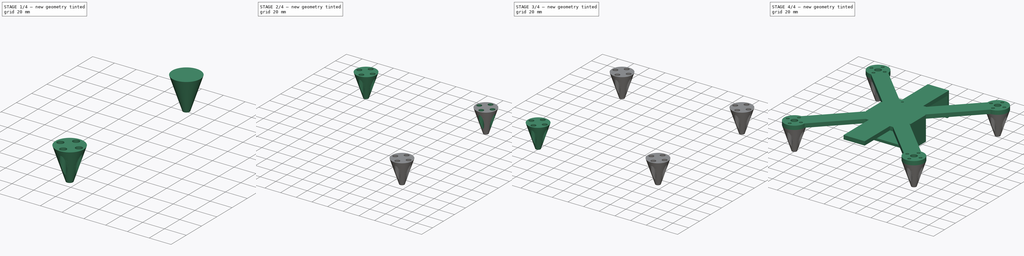
[diagram: build sequence overview — one tinted view per stage of 4, left to right]
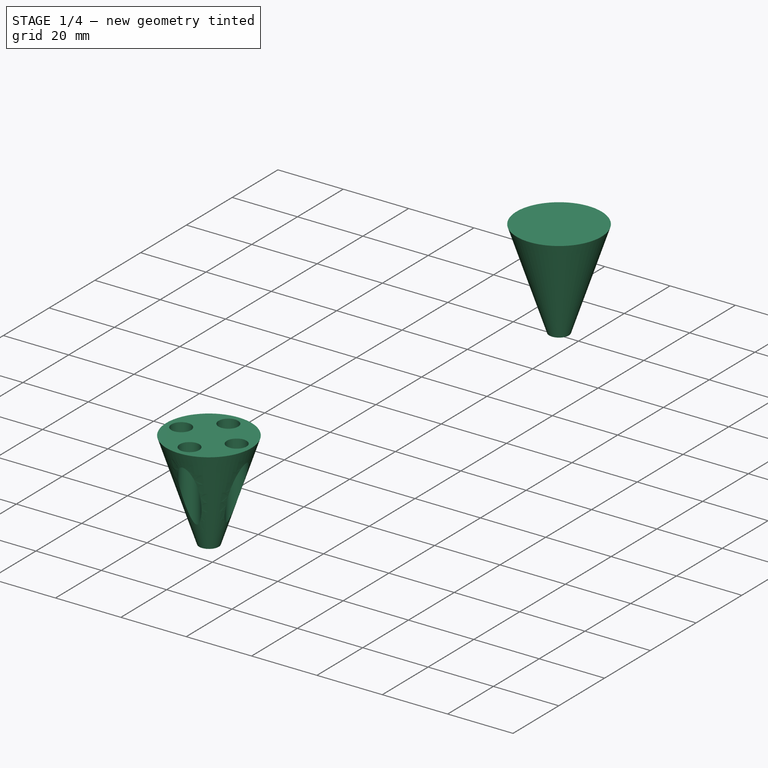
[diagram: stage 1 of 4 — iso view after this stage's code; geometry added in this stage tinted green]
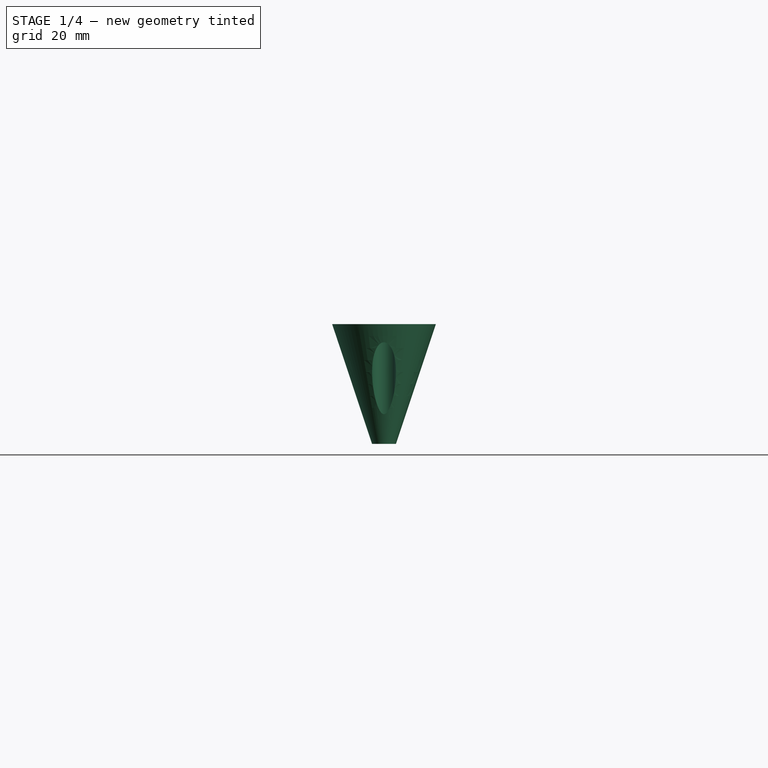
[diagram: stage 1 of 4 — front view after this stage's code; geometry added in this stage tinted green]
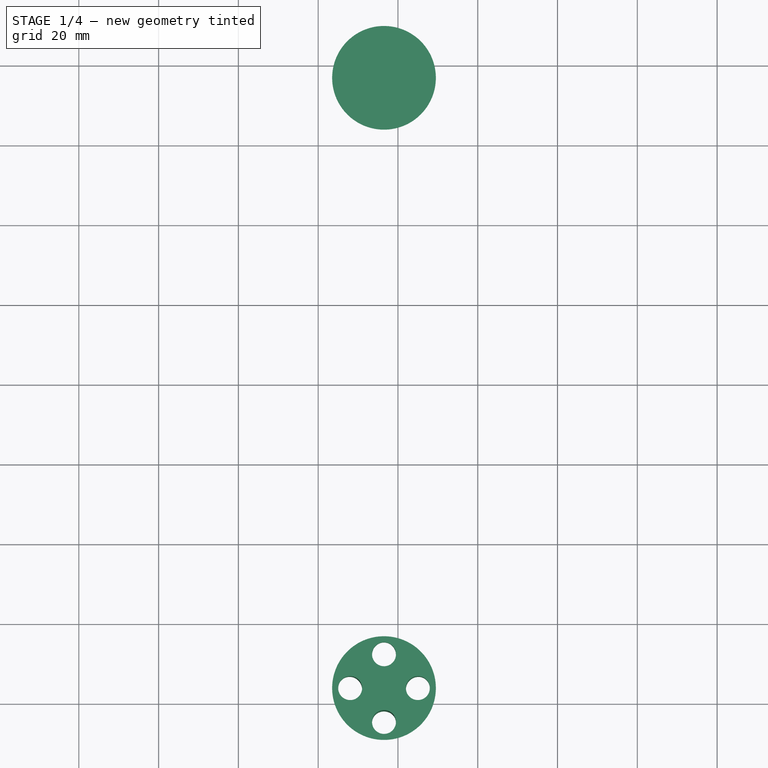
[diagram: stage 1 of 4 — top view after this stage's code; geometry added in this stage tinted green]
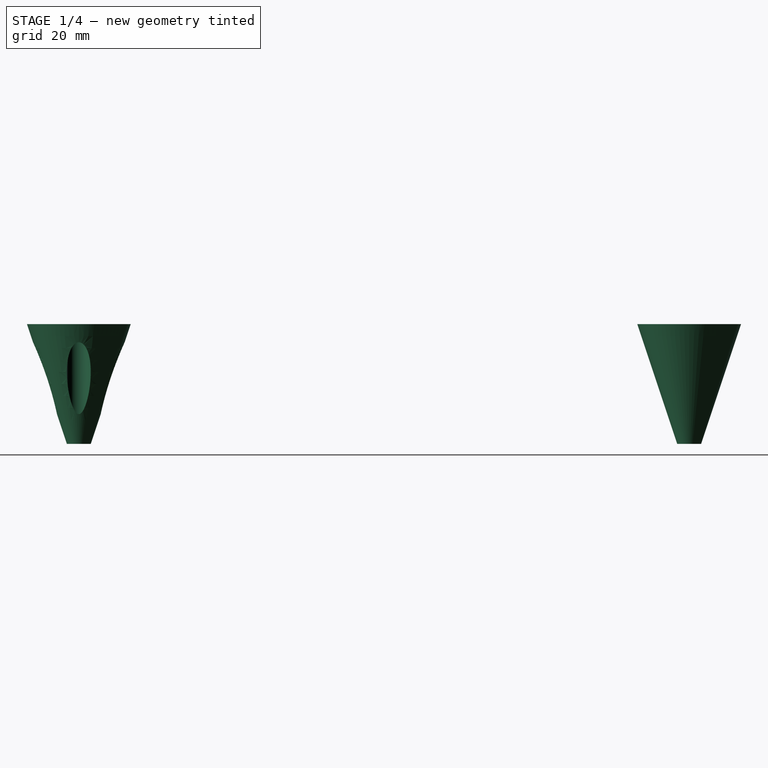
[diagram: stage 1 of 4 — right view after this stage's code; geometry added in this stage tinted green]
FCSTD DOCUMENT  (FreeCAD 0.16RUnknown)
Label: drone
License: All rights reserved
LicenseURL: http://en.wikipedia.org/wiki/All_rights_reserved
objects: Sketcher::SketchObject×7, Part::Cone×4, PartDesign::Pocket×4, PartDesign::Pad×3
note: 25 computed .brp shape members not serialized (recipe doc carries the construction recipe); baked Part::Feature solids carry a one-line shape summary decoded from their .brp

FEATURE [Part::Cone] Cone
  Angle = 360
  Height = 30
  Placement = pos=(76.5,-76.5,-30) rot=(0,0,1;0rad)
  Radius1 = 3
  Radius2 = 13
FEATURE [Part::Cone] Cone001
  Angle = 360
  Height = 30
  Placement = pos=(76.5,76.5,-30) rot=(0,0,1;0rad)
  Radius1 = 3
  Radius2 = 13
FEATURE [PartDesign::Pocket] Pocket003
  Length = 5
  Placement = pos=(76.5,-76.5,-30) rot=(0,0,1;0rad)
  Sketch = -> Sketch008
  Type = 1
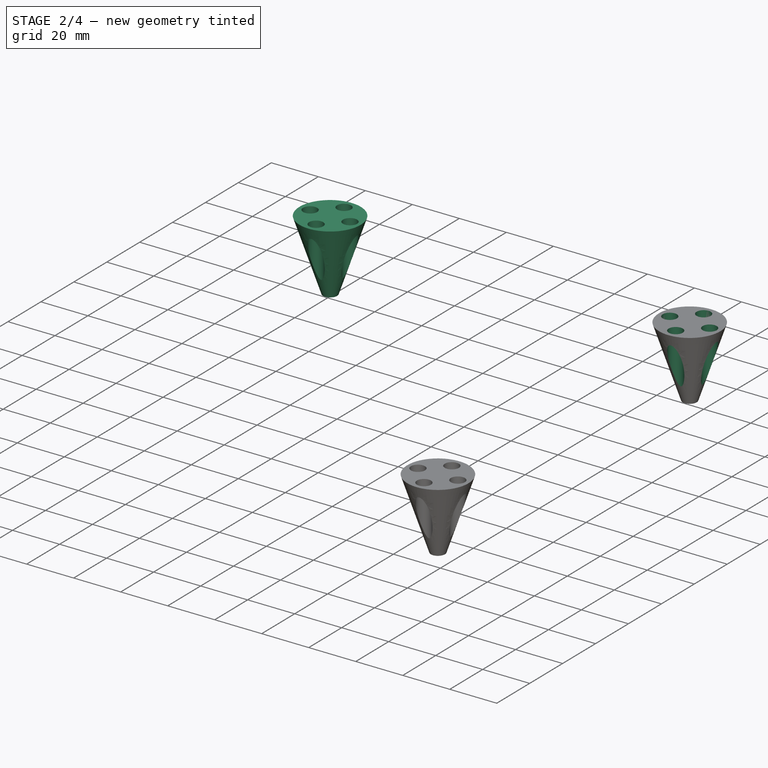
[diagram: stage 2 of 4 — iso view after this stage's code; geometry added in this stage tinted green]
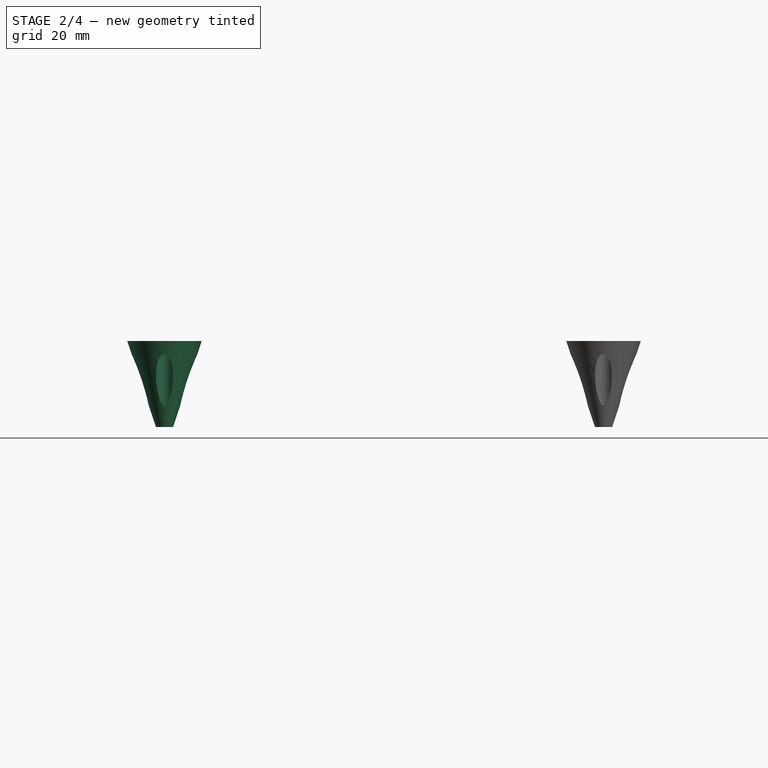
[diagram: stage 2 of 4 — front view after this stage's code; geometry added in this stage tinted green]
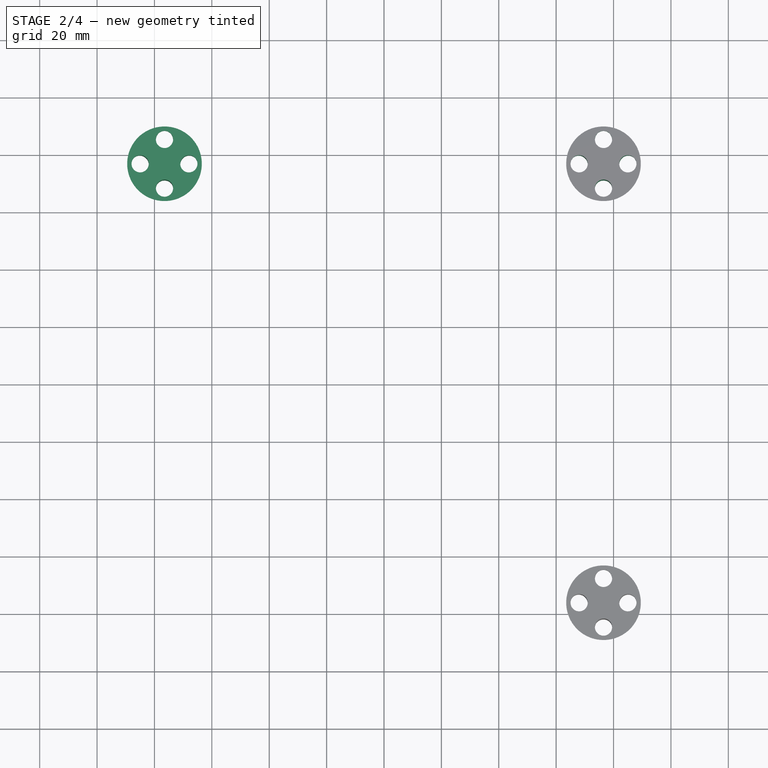
[diagram: stage 2 of 4 — top view after this stage's code; geometry added in this stage tinted green]
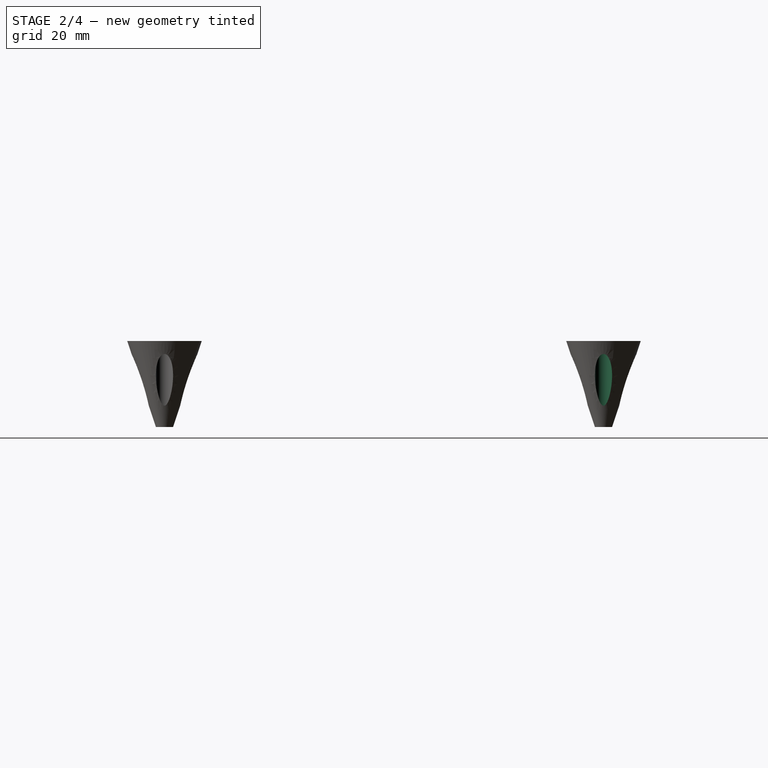
[diagram: stage 2 of 4 — right view after this stage's code; geometry added in this stage tinted green]
FEATURE [Part::Cone] Cone002
  Angle = 360
  Height = 30
  Placement = pos=(-76.5,76.5,-30) rot=(0,0,1;0rad)
  Radius1 = 3
  Radius2 = 13
FEATURE [Sketcher::SketchObject] Sketch006
  Placement = pos=(-76.5,76.5,0) rot=(0,0,1;0rad)
  Support = -> Cone002 [Face2]
  sketch-geometry (9):
    g0: LineSegment [constr] StartX=153.235 StartY=0 StartZ=0 EndX=0 EndY=0 EndZ=0
    g1: LineSegment [constr] StartX=0 StartY=8.48528 StartZ=0 EndX=8.48528 EndY=0 EndZ=0
    g2: LineSegment [constr] StartX=8.48528 StartY=0 StartZ=0 EndX=0 EndY=-8.48528 EndZ=0
    g3: LineSegment [constr] StartX=0 StartY=-8.48528 StartZ=0 EndX=-8.48528 EndY=0 EndZ=0
    g4: LineSegment [constr] StartX=-8.48528 StartY=0 StartZ=0 EndX=0 EndY=8.48528 EndZ=0
    g5: Circle CenterX=0 CenterY=8.48528 CenterZ=0 NormalX=0 NormalY=0 NormalZ=1 Radius=3
    g6: Circle CenterX=8.48528 CenterY=0 CenterZ=0 NormalX=0 NormalY=0 NormalZ=1 Radius=3
    g7: Circle CenterX=0 CenterY=-8.48528 CenterZ=0 NormalX=0 NormalY=0 NormalZ=1 Radius=3
    g8: Circle CenterX=-8.48528 CenterY=0 CenterZ=0 NormalX=0 NormalY=0 NormalZ=1 Radius=3
  constraints (21):
    c: Horizontal(g0)
    c: Coincident(g1,g2)
    c: Coincident(g2,g3)
    c: Coincident(g3,g4)
    c: Coincident(g4,g1)
    c: Equal(g2,g1)
    c: Equal(g1,g3)
    c: Equal(g3,g4)
    c: Angle(g1,g2) = 1.5708
    c: Coincident(g5,g1)
    c: Coincident(g6,g1)
    c: Coincident(g7,g2)
    c: Coincident(g8,g3)
    c: Equal(g8,g5)
    c: Equal(g8,g7)
    c: Symmetric(g1,g3,g0)
    c: PointOnObject(g1,g0)
    c: Coincident(g0,g-1)
    c: Distance(g1) = 12
    c: Radius(g6) = 3
    c: Equal(g6,g8)
FEATURE [Sketcher::SketchObject] Sketch007
  Placement = pos=(76.5,76.5,0) rot=(0,0,1;0rad)
  Support = -> Cone001 [Face2]
  sketch-geometry (9):
    g0: LineSegment [constr] StartX=153.235 StartY=0 StartZ=0 EndX=0 EndY=0 EndZ=0
    g1: LineSegment [constr] StartX=0 StartY=8.48528 StartZ=0 EndX=8.48528 EndY=0 EndZ=0
    g2: LineSegment [constr] StartX=8.48528 StartY=0 StartZ=0 EndX=0 EndY=-8.48528 EndZ=0
    g3: LineSegment [constr] StartX=0 StartY=-8.48528 StartZ=0 EndX=-8.48528 EndY=0 EndZ=0
    g4: LineSegment [constr] StartX=-8.48528 StartY=0 StartZ=0 EndX=0 EndY=8.48528 EndZ=0
    g5: Circle CenterX=0 CenterY=8.48528 CenterZ=0 NormalX=0 NormalY=0 NormalZ=1 Radius=3
    g6: Circle CenterX=8.48528 CenterY=0 CenterZ=0 NormalX=0 NormalY=0 NormalZ=1 Radius=3
    g7: Circle CenterX=0 CenterY=-8.48528 CenterZ=0 NormalX=0 NormalY=0 NormalZ=1 Radius=3
    g8: Circle CenterX=-8.48528 CenterY=0 CenterZ=0 NormalX=0 NormalY=0 NormalZ=1 Radius=3
  constraints (21):
    c: Horizontal(g0)
    c: Coincident(g1,g2)
    c: Coincident(g2,g3)
    c: Coincident(g3,g4)
    c: Coincident(g4,g1)
    c: Equal(g2,g1)
    c: Equal(g1,g3)
    c: Equal(g3,g4)
    c: Angle(g1,g2) = 1.5708
    c: Coincident(g5,g1)
    c: Coincident(g6,g1)
    c: Coincident(g7,g2)
    c: Coincident(g8,g3)
    c: Equal(g8,g5)
    c: Equal(g8,g7)
    c: Symmetric(g1,g3,g0)
    c: PointOnObject(g1,g0)
    c: Coincident(g0,g-1)
    c: Distance(g1) = 12
    c: Radius(g6) = 3
    c: Equal(g6,g8)
FEATURE [Sketcher::SketchObject] Sketch008
  Placement = pos=(76.5,-76.5,0) rot=(0,0,1;0rad)
  Support = -> Cone [Face2]
  sketch-geometry (9):
    g0: LineSegment [constr] StartX=153.235 StartY=0 StartZ=0 EndX=0 EndY=0 EndZ=0
    g1: LineSegment [constr] StartX=0 StartY=8.48528 StartZ=0 EndX=8.48528 EndY=0 EndZ=0
    g2: LineSegment [constr] StartX=8.48528 StartY=0 StartZ=0 EndX=0 EndY=-8.48528 EndZ=0
    g3: LineSegment [constr] StartX=0 StartY=-8.48528 StartZ=0 EndX=-8.48528 EndY=0 EndZ=0
    g4: LineSegment [constr] StartX=-8.48528 StartY=0 StartZ=0 EndX=0 EndY=8.48528 EndZ=0
    g5: Circle CenterX=0 CenterY=8.48528 CenterZ=0 NormalX=0 NormalY=0 NormalZ=1 Radius=3
    g6: Circle CenterX=8.48528 CenterY=0 CenterZ=0 NormalX=0 NormalY=0 NormalZ=1 Radius=3
    g7: Circle CenterX=0 CenterY=-8.48528 CenterZ=0 NormalX=0 NormalY=0 NormalZ=1 Radius=3
    g8: Circle CenterX=-8.48528 CenterY=0 CenterZ=0 NormalX=0 NormalY=0 NormalZ=1 Radius=3
  constraints (21):
    c: Horizontal(g0)
    c: Coincident(g1,g2)
    c: Coincident(g2,g3)
    c: Coincident(g3,g4)
    c: Coincident(g4,g1)
    c: Equal(g2,g1)
    c: Equal(g1,g3)
    c: Equal(g3,g4)
    c: Angle(g1,g2) = 1.5708
    c: Coincident(g5,g1)
    c: Coincident(g6,g1)
    c: Coincident(g7,g2)
    c: Coincident(g8,g3)
    c: Equal(g8,g5)
    c: Equal(g8,g7)
    c: Symmetric(g1,g3,g0)
    c: PointOnObject(g1,g0)
    c: Coincident(g0,g-1)
    c: Distance(g1) = 12
    c: Radius(g6) = 3
    c: Equal(g6,g8)
FEATURE [PartDesign::Pocket] Pocket001
  Length = 5
  Placement = pos=(-76.5,76.5,-30) rot=(0,0,1;0rad)
  Sketch = -> Sketch006
  Type = 1
FEATURE [PartDesign::Pocket] Pocket002
  Length = 5
  Placement = pos=(76.5,76.5,-30) rot=(0,0,1;0rad)
  Sketch = -> Sketch007
  Type = 1
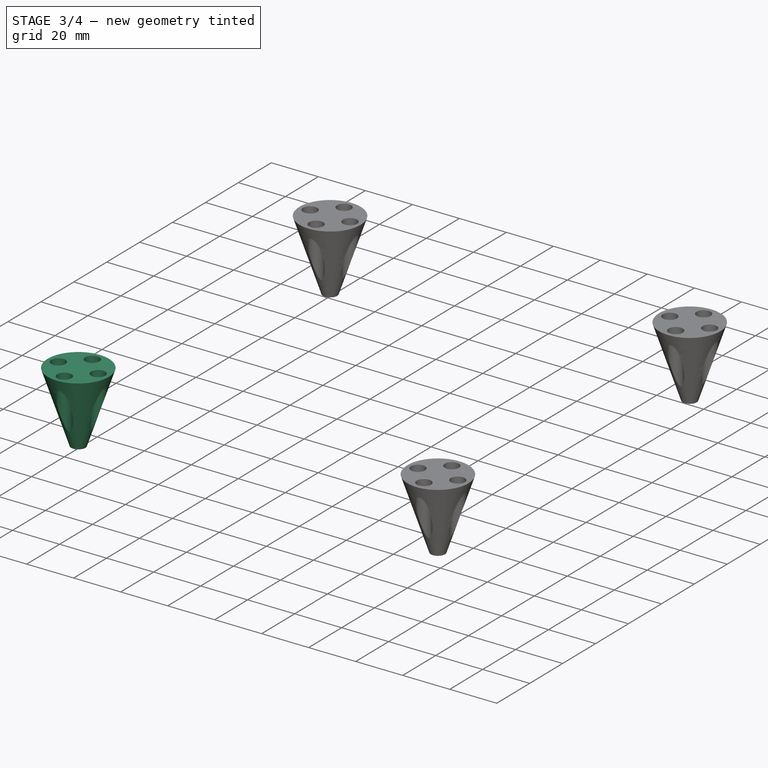
[diagram: stage 3 of 4 — iso view after this stage's code; geometry added in this stage tinted green]
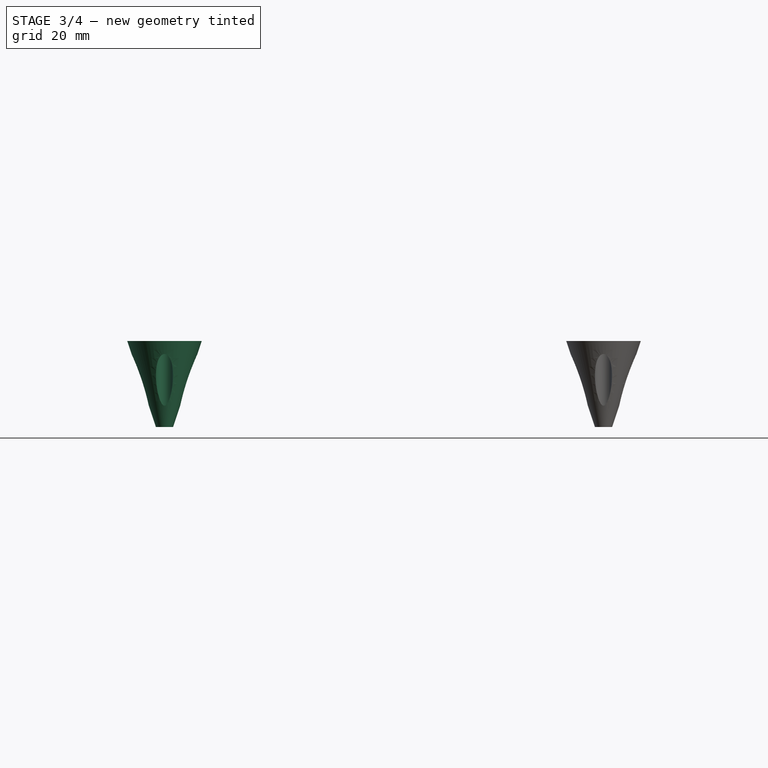
[diagram: stage 3 of 4 — front view after this stage's code; geometry added in this stage tinted green]
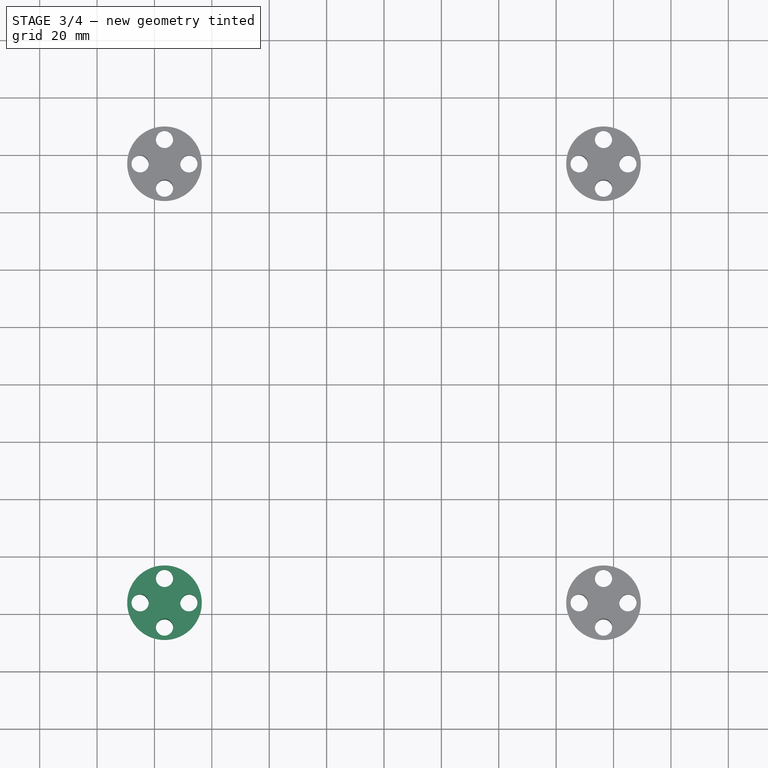
[diagram: stage 3 of 4 — top view after this stage's code; geometry added in this stage tinted green]
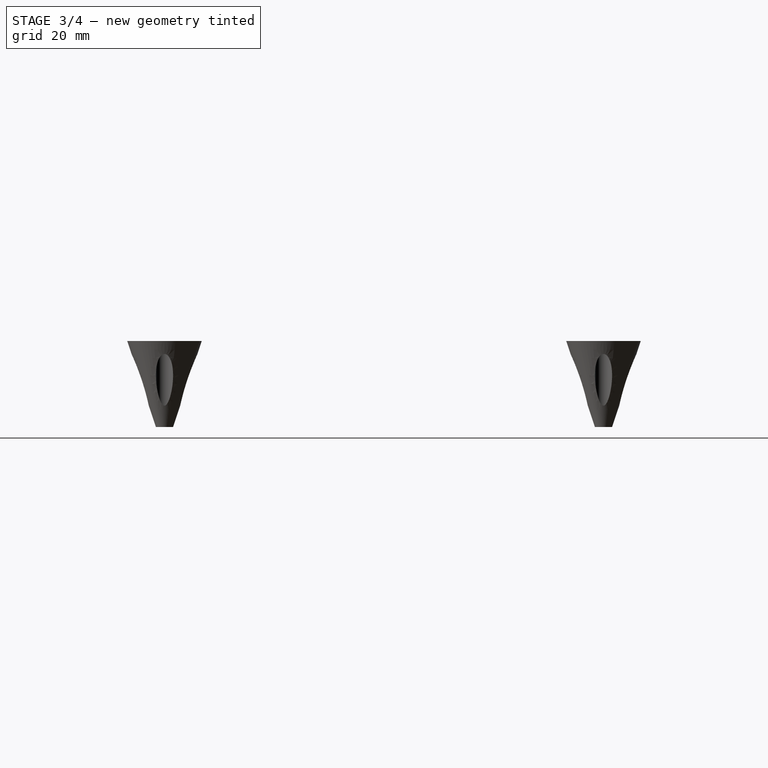
[diagram: stage 3 of 4 — right view after this stage's code; geometry added in this stage tinted green]
FEATURE [Part::Cone] Cone003
  Angle = 360
  Height = 30
  Placement = pos=(-76.5,-76.5,-30) rot=(0,0,1;0rad)
  Radius1 = 3
  Radius2 = 13
FEATURE [Sketcher::SketchObject] Sketch004
  Placement = pos=(-76.5,-76.5,0) rot=(0,0,1;0rad)
  Support = -> Cone003 [Face2]
  sketch-geometry (9):
    g0: LineSegment [constr] StartX=153.235 StartY=0 StartZ=0 EndX=0 EndY=0 EndZ=0
    g1: LineSegment [constr] StartX=0 StartY=8.48528 StartZ=0 EndX=8.48528 EndY=0 EndZ=0
    g2: LineSegment [constr] StartX=8.48528 StartY=0 StartZ=0 EndX=0 EndY=-8.48528 EndZ=0
    g3: LineSegment [constr] StartX=0 StartY=-8.48528 StartZ=0 EndX=-8.48528 EndY=0 EndZ=0
    g4: LineSegment [constr] StartX=-8.48528 StartY=0 StartZ=0 EndX=0 EndY=8.48528 EndZ=0
    g5: Circle CenterX=0 CenterY=8.48528 CenterZ=0 NormalX=0 NormalY=0 NormalZ=1 Radius=3
    g6: Circle CenterX=8.48528 CenterY=0 CenterZ=0 NormalX=0 NormalY=0 NormalZ=1 Radius=3
    g7: Circle CenterX=0 CenterY=-8.48528 CenterZ=0 NormalX=0 NormalY=0 NormalZ=1 Radius=3
    g8: Circle CenterX=-8.48528 CenterY=0 CenterZ=0 NormalX=0 NormalY=0 NormalZ=1 Radius=3
  constraints (21):
    c: Horizontal(g0)
    c: Coincident(g1,g2)
    c: Coincident(g2,g3)
    c: Coincident(g3,g4)
    c: Coincident(g4,g1)
    c: Equal(g2,g1)
    c: Equal(g1,g3)
    c: Equal(g3,g4)
    c: Angle(g1,g2) = 1.5708
    c: Coincident(g5,g1)
    c: Coincident(g6,g1)
    c: Coincident(g7,g2)
    c: Coincident(g8,g3)
    c: Equal(g8,g5)
    c: Equal(g8,g7)
    c: Symmetric(g1,g3,g0)
    c: PointOnObject(g1,g0)
    c: Coincident(g0,g-1)
    c: Distance(g1) = 12
    c: Radius(g6) = 3
    c: Equal(g6,g8)
FEATURE [PartDesign::Pocket] Pocket
  Length = 5
  Placement = pos=(-76.5,-76.5,-30) rot=(0,0,1;0rad)
  Sketch = -> Sketch004
  Type = 1
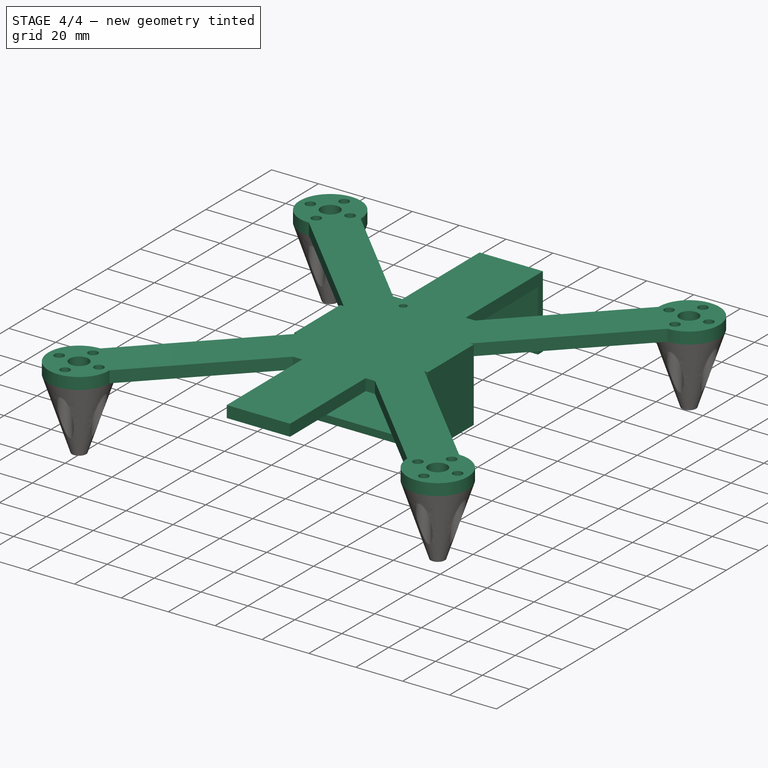
[diagram: stage 4 of 4 — iso view after this stage's code; geometry added in this stage tinted green]
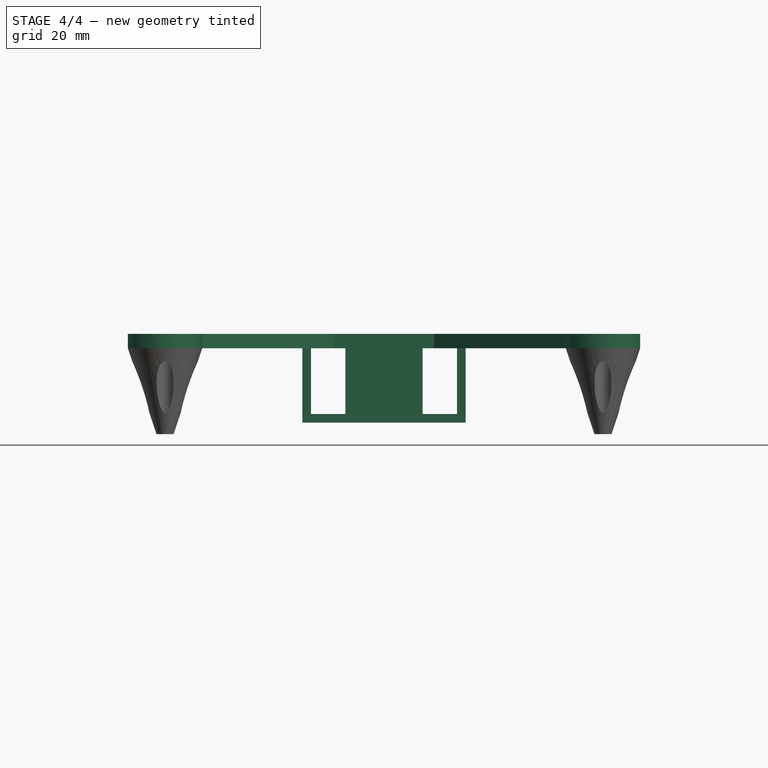
[diagram: stage 4 of 4 — front view after this stage's code; geometry added in this stage tinted green]
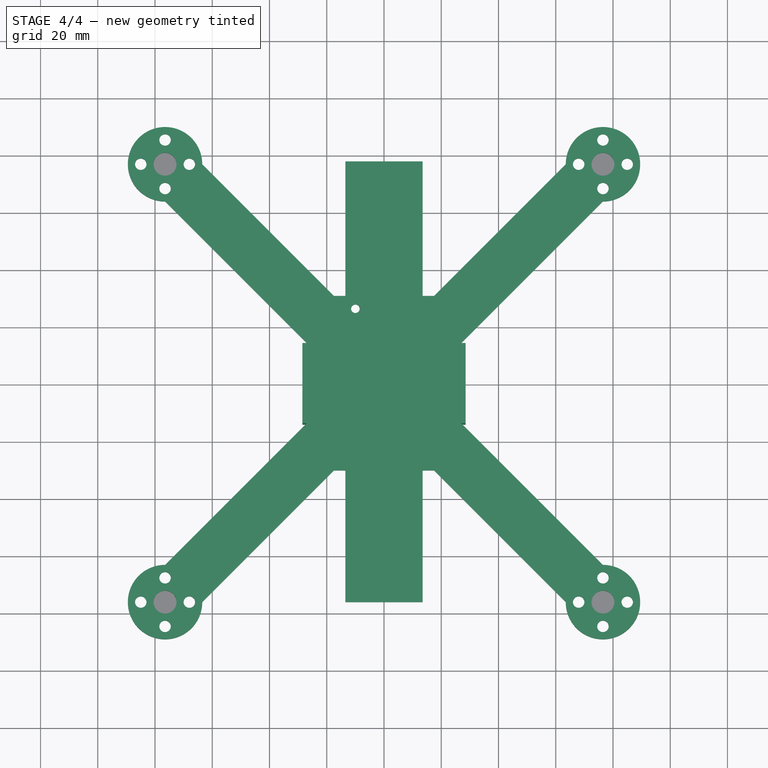
[diagram: stage 4 of 4 — top view after this stage's code; geometry added in this stage tinted green]
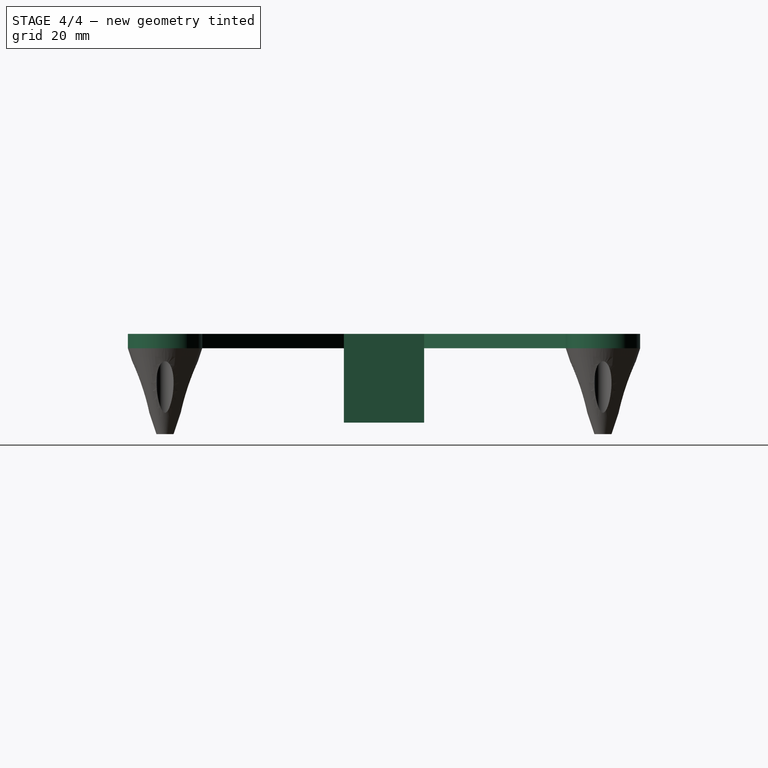
[diagram: stage 4 of 4 — right view after this stage's code; geometry added in this stage tinted green]
FEATURE [Sketcher::SketchObject] Sketch001
  sketch-geometry (90):
    g0: LineSegment [constr] StartX=-76.5 StartY=76.5 StartZ=0 EndX=76.5 EndY=76.5 EndZ=0
    g1: LineSegment [constr] StartX=76.5 StartY=76.5 StartZ=0 EndX=76.5 EndY=-76.5 EndZ=0
    g2: LineSegment [constr] StartX=76.5 StartY=-76.5 StartZ=0 EndX=-76.5 EndY=-76.5 EndZ=0
    g3: LineSegment [constr] StartX=-76.5 StartY=-76.5 StartZ=0 EndX=-76.5 EndY=76.5 EndZ=0
    g4: ArcOfCircle CenterX=-76.5 CenterY=76.5 CenterZ=0 NormalX=0 NormalY=0 NormalZ=1 Radius=13 StartAngle=0 EndAngle=4.71239
    g5: ArcOfCircle CenterX=76.5 CenterY=76.5 CenterZ=0 NormalX=0 NormalY=0 NormalZ=1 Radius=13 StartAngle=4.71239 EndAngle=9.42478
    g6: ArcOfCircle CenterX=76.5 CenterY=-76.5 CenterZ=0 NormalX=0 NormalY=0 NormalZ=1 Radius=13 StartAngle=3.14159 EndAngle=7.85398
    g7: ArcOfCircle CenterX=-76.5 CenterY=-76.5 CenterZ=0 NormalX=0 NormalY=0 NormalZ=1 Radius=13 StartAngle=1.5708 EndAngle=6.28319
    g8: LineSegment [constr] StartX=-27 StartY=30.5 StartZ=0 EndX=27 EndY=30.5 EndZ=0
    g9: LineSegment [constr] StartX=27 StartY=30.5 StartZ=0 EndX=27 EndY=-30.5 EndZ=0
    g10: LineSegment [constr] StartX=27 StartY=-30.5 StartZ=0 EndX=-27 EndY=-30.5 EndZ=0
    g11: LineSegment [constr] StartX=-27 StartY=-30.5 StartZ=0 EndX=-27 EndY=30.5 EndZ=0
    g12: LineSegment [constr] StartX=-13.5 StartY=76.5 StartZ=0 EndX=13.5 EndY=76.5 EndZ=0
    g13: LineSegment [constr] StartX=13.5 StartY=76.5 StartZ=0 EndX=13.5 EndY=-76.5 EndZ=0
    g14: LineSegment [constr] StartX=13.5 StartY=-76.5 StartZ=0 EndX=-13.5 EndY=-76.5 EndZ=0
    g15: LineSegment [constr] StartX=-13.5 StartY=-76.5 StartZ=0 EndX=-13.5 EndY=76.5 EndZ=0
    g16: LineSegment [constr] StartX=-63.5 StartY=76.5 StartZ=0 EndX=76.5 EndY=-63.5 EndZ=0
    g17: LineSegment [constr] StartX=63.5 StartY=-76.5 StartZ=0 EndX=-76.5 EndY=63.5 EndZ=0
    g18: LineSegment [constr] StartX=-63.5 StartY=-76.5 StartZ=0 EndX=76.5 EndY=63.5 EndZ=0
    g19: LineSegment [constr] StartX=63.5 StartY=76.5 StartZ=0 EndX=-76.5 EndY=-63.5 EndZ=0
    g20: GeomPoint [constr] X=-17.5 Y=30.5 Z=0
    g21: GeomPoint [constr] X=-27 Y=14 Z=0
    g22: GeomPoint [constr] X=17.5 Y=30.5 Z=0
    g23: GeomPoint [constr] X=27 Y=14 Z=0
    g24: GeomPoint [constr] X=-17.5 Y=-30.5 Z=0
    g25: GeomPoint [constr] X=-27 Y=-14 Z=0
    g26: GeomPoint [constr] X=17.5 Y=-30.5 Z=0
    g27: GeomPoint [constr] X=27 Y=-14 Z=0
    g28: LineSegment StartX=-63.5 StartY=76.5 StartZ=0 EndX=-17.5 EndY=30.5 EndZ=0
    g29: LineSegment StartX=-76.5 StartY=63.5 StartZ=0 EndX=-27 EndY=14 EndZ=0
    g30: LineSegment StartX=63.5 StartY=76.5 StartZ=0 EndX=17.5 EndY=30.5 EndZ=0
    g31: LineSegment StartX=27 StartY=14 StartZ=0 EndX=76.5 EndY=63.5 EndZ=0
    g32: LineSegment StartX=17.5 StartY=-30.5 StartZ=0 EndX=63.5 EndY=-76.5 EndZ=0
    g33: LineSegment StartX=76.5 StartY=-63.5 StartZ=0 EndX=27 EndY=-14 EndZ=0
    g34: LineSegment StartX=-63.5 StartY=-76.5 StartZ=0 EndX=-17.5 EndY=-30.5 EndZ=0
    g35: LineSegment StartX=-76.5 StartY=-63.5 StartZ=0 EndX=-27 EndY=-14 EndZ=0
    g36: GeomPoint [constr] X=-13.5 Y=30.5 Z=0
    g37: GeomPoint [constr] X=13.5 Y=30.5 Z=0
    g38: GeomPoint [constr] X=-13.5 Y=-30.5 Z=0
    g39: GeomPoint [constr] X=13.5 Y=-30.5 Z=0
    g40: LineSegment StartX=-17.5 StartY=30.5 StartZ=0 EndX=-13.5 EndY=30.5 EndZ=0
    g41: LineSegment StartX=-13.5 StartY=30.5 StartZ=0 EndX=-13.5 EndY=76.5 EndZ=0
    g42: LineSegment StartX=-13.5 StartY=76.5 StartZ=0 EndX=13.5 EndY=76.5 EndZ=0
    g43: LineSegment StartX=13.5 StartY=76.5 StartZ=0 EndX=13.5 EndY=30.5 EndZ=0
    g44: LineSegment StartX=13.5 StartY=30.5 StartZ=0 EndX=17.5 EndY=30.5 EndZ=0
    g45: LineSegment StartX=27 StartY=14 StartZ=0 EndX=27 EndY=-14 EndZ=0
    g46: LineSegment StartX=17.5 StartY=-30.5 StartZ=0 EndX=13.5 EndY=-30.5 EndZ=0
    g47: LineSegment StartX=13.5 StartY=-30.5 StartZ=0 EndX=13.5 EndY=-76.5 EndZ=0
    g48: LineSegment StartX=13.5 StartY=-76.5 StartZ=0 EndX=-13.5 EndY=-76.5 EndZ=0
    g49: LineSegment StartX=-13.5 StartY=-76.5 StartZ=0 EndX=-13.5 EndY=-30.5 EndZ=0
    g50: LineSegment StartX=-13.5 StartY=-30.5 StartZ=0 EndX=-17.5 EndY=-30.5 EndZ=0
    g51: LineSegment StartX=-27 StartY=-14 StartZ=0 EndX=-27 EndY=14 EndZ=0
    g52: Circle CenterX=-76.5 CenterY=76.5 CenterZ=0 NormalX=0 NormalY=0 NormalZ=1 Radius=4
    g53: Circle CenterX=76.5 CenterY=76.5 CenterZ=0 NormalX=0 NormalY=0 NormalZ=1 Radius=4
    g54: Circle CenterX=76.5 CenterY=-76.5 CenterZ=0 NormalX=0 NormalY=0 NormalZ=1 Radius=4
    g55: Circle CenterX=-76.5 CenterY=-76.5 CenterZ=0 NormalX=0 NormalY=0 NormalZ=1 Radius=4
    g56: GeomPoint [constr] X=-10 Y=26 Z=0
    g57: Circle CenterX=-10 CenterY=26 CenterZ=0 NormalX=0 NormalY=0 NormalZ=1 Radius=1.5
    g58: LineSegment [constr] StartX=-76.5 StartY=84.9853 StartZ=0 EndX=-68.0147 EndY=76.5 EndZ=0
    g59: LineSegment [constr] StartX=-68.0147 StartY=76.5 StartZ=0 EndX=-76.5 EndY=68.0147 EndZ=0
    g60: LineSegment [constr] StartX=-76.5 StartY=68.0147 StartZ=0 EndX=-84.9853 EndY=76.5 EndZ=0
    g61: LineSegment [constr] StartX=-84.9853 StartY=76.5 StartZ=0 EndX=-76.5 EndY=84.9853 EndZ=0
    g62: Circle CenterX=-76.5 CenterY=84.9853 CenterZ=0 NormalX=0 NormalY=0 NormalZ=1 Radius=2
    g63: Circle CenterX=-68.0147 CenterY=76.5 CenterZ=0 NormalX=0 NormalY=0 NormalZ=1 Radius=2
    g64: Circle CenterX=-84.9853 CenterY=76.5 CenterZ=0 NormalX=0 NormalY=0 NormalZ=1 Radius=2
    g65: Circle CenterX=-76.5 CenterY=68.0147 CenterZ=0 NormalX=0 NormalY=0 NormalZ=1 Radius=2
    g66: LineSegment [constr] StartX=76.5 StartY=84.9853 StartZ=0 EndX=84.9853 EndY=76.5 EndZ=0
    g67: LineSegment [constr] StartX=84.9853 StartY=76.5 StartZ=0 EndX=76.5 EndY=68.0147 EndZ=0
    g68: LineSegment [constr] StartX=76.5 StartY=68.0147 StartZ=0 EndX=68.0147 EndY=76.5 EndZ=0
    g69: LineSegment [constr] StartX=68.0147 StartY=76.5 StartZ=0 EndX=76.5 EndY=84.9853 EndZ=0
    g70: Circle CenterX=76.5 CenterY=84.9853 CenterZ=0 NormalX=0 NormalY=0 NormalZ=1 Radius=2
    g71: Circle CenterX=84.9853 CenterY=76.5 CenterZ=0 NormalX=0 NormalY=0 NormalZ=1 Radius=2
    g72: Circle CenterX=68.0147 CenterY=76.5 CenterZ=0 NormalX=0 NormalY=0 NormalZ=1 Radius=2
    g73: Circle CenterX=76.5 CenterY=68.0147 CenterZ=0 NormalX=0 NormalY=0 NormalZ=1 Radius=2
    g74: LineSegment [constr] StartX=-76.5 StartY=-68.0147 StartZ=0 EndX=-68.0147 EndY=-76.5 EndZ=0
    g75: LineSegment [constr] StartX=-68.0147 StartY=-76.5 StartZ=0 EndX=-76.5 EndY=-84.9853 EndZ=0
    g76: LineSegment [constr] StartX=-76.5 StartY=-84.9853 StartZ=0 EndX=-84.9853 EndY=-76.5 EndZ=0
    g77: LineSegment [constr] StartX=-84.9853 StartY=-76.5 StartZ=0 EndX=-76.5 EndY=-68.0147 EndZ=0
    g78: Circle CenterX=-76.5 CenterY=-68.0147 CenterZ=0 NormalX=0 NormalY=0 NormalZ=1 Radius=2
    g79: Circle CenterX=-68.0147 CenterY=-76.5 CenterZ=0 NormalX=0 NormalY=0 NormalZ=1 Radius=2
    g80: Circle CenterX=-84.9853 CenterY=-76.5 CenterZ=0 NormalX=0 NormalY=0 NormalZ=1 Radius=2
    g81: Circle CenterX=-76.5 CenterY=-84.9853 CenterZ=0 NormalX=0 NormalY=0 NormalZ=1 Radius=2
    g82: LineSegment [constr] StartX=76.5 StartY=-68.0147 StartZ=0 EndX=84.9853 EndY=-76.5 EndZ=0
    g83: LineSegment [constr] StartX=84.9853 StartY=-76.5 StartZ=0 EndX=76.5 EndY=-84.9853 EndZ=0
    g84: LineSegment [constr] StartX=76.5 StartY=-84.9853 StartZ=0 EndX=68.0147 EndY=-76.5 EndZ=0
    g85: LineSegment [constr] StartX=68.0147 StartY=-76.5 StartZ=0 EndX=76.5 EndY=-68.0147 EndZ=0
    g86: Circle CenterX=76.5 CenterY=-68.0147 CenterZ=0 NormalX=0 NormalY=0 NormalZ=1 Radius=2
    g87: Circle CenterX=84.9853 CenterY=-76.5 CenterZ=0 NormalX=0 NormalY=0 NormalZ=1 Radius=2
    g88: Circle CenterX=68.0147 CenterY=-76.5 CenterZ=0 NormalX=0 NormalY=0 NormalZ=1 Radius=2
    g89: Circle CenterX=76.5 CenterY=-84.9853 CenterZ=0 NormalX=0 NormalY=0 NormalZ=1 Radius=2
  constraints (204):
    c: Coincident(g0,g1)
    c: Coincident(g1,g2)
    c: Coincident(g2,g3)
    c: Coincident(g3,g0)
    c: Horizontal(g0)
    c: Horizontal(g2)
    c: Vertical(g1)
    c: Distance(g0) = 153
    c: Distance(g1) = 153
    c: Symmetric(g0,g1,g-1)
    c: Symmetric(g0,g2,g-1)
    c: Coincident(g4,g0)
    c: Coincident(g5,g0)
    c: Coincident(g6,g1)
    c: Coincident(g7,g2)
    c: Radius(g7) = 13
    c: Equal(g7,g4)
    c: Equal(g7,g5)
    c: Equal(g7,g6)
    c: PointOnObject(g4,g0)
    c: PointOnObject(g4,g3)
    c: PointOnObject(g5,g1)
    c: PointOnObject(g5,g0)
    c: PointOnObject(g6,g2)
    c: PointOnObject(g6,g1)
    c: PointOnObject(g7,g3)
    c: PointOnObject(g7,g2)
    c: Coincident(g8,g9)
    c: Coincident(g9,g10)
    c: Coincident(g10,g11)
    c: Coincident(g11,g8)
    c: Horizontal(g10)
    c: Vertical(g9)
    c: Vertical(g11)
    c: Distance(g8) = 54
    c: Distance(g9) = 61
    c: Symmetric(g8,g9,g-1)
    c: Symmetric(g8,g10,g-1)
    c: Coincident(g12,g13)
    c: Coincident(g13,g14)
    c: Coincident(g14,g15)
    c: Coincident(g15,g12)
    c: Horizontal(g12)
    c: Vertical(g13)
    c: Distance(g12) = 27
    c: Distance(g15) = 153
    c: Symmetric(g12,g13,g-1)
    c: Symmetric(g12,g14,g-1)
    c: Coincident(g16,g4)
    c: Coincident(g16,g6)
    c: Coincident(g17,g6)
    c: Coincident(g17,g4)
    c: Coincident(g18,g7)
    c: Coincident(g18,g5)
    c: Coincident(g19,g5)
    c: Coincident(g19,g7)
    c: PointOnObject(g20,g16)
    c: PointOnObject(g21,g17)
    c: PointOnObject(g20,g8)
    c: PointOnObject(g21,g11)
    c: PointOnObject(g22,g19)
    c: PointOnObject(g23,g18)
    c: PointOnObject(g23,g9)
    c: PointOnObject(g22,g8)
    c: PointOnObject(g24,g18)
    c: PointOnObject(g25,g19)
    c: PointOnObject(g25,g11)
    c: PointOnObject(g24,g10)
    c: PointOnObject(g26,g17)
    c: PointOnObject(g27,g16)
    c: PointOnObject(g27,g9)
    c: PointOnObject(g26,g10)
    c: Coincident(g28,g4)
    c: Coincident(g28,g20)
    c: Coincident(g29,g4)
    c: Coincident(g29,g21)
    c: Coincident(g30,g5)
    c: Coincident(g30,g22)
    c: Coincident(g31,g23)
    c: Coincident(g31,g5)
    c: Coincident(g32,g26)
    c: Coincident(g32,g6)
    c: Coincident(g33,g6)
    c: Coincident(g33,g27)
    c: Coincident(g34,g7)
    c: Coincident(g34,g24)
    c: Coincident(g35,g7)
    c: Coincident(g35,g25)
    c: PointOnObject(g36,g15)
    c: PointOnObject(g37,g13)
    c: PointOnObject(g36,g8)
    c: PointOnObject(g37,g8)
    c: PointOnObject(g38,g15)
    c: PointOnObject(g39,g13)
    c: PointOnObject(g39,g10)
    c: PointOnObject(g38,g10)
    c: Coincident(g40,g20)
    c: Coincident(g40,g36)
    c: Coincident(g41,g36)
    c: Coincident(g41,g12)
    c: Coincident(g42,g12)
    c: Horizontal(g42)
    c: Coincident(g43,g12)
    c: Coincident(g43,g37)
    c: Coincident(g44,g37)
    c: Coincident(g44,g22)
    c: Coincident(g45,g23)
    c: Coincident(g45,g27)
    c: Coincident(g46,g26)
    c: Coincident(g46,g39)
    c: Coincident(g47,g39)
    c: Coincident(g47,g13)
    c: Coincident(g48,g13)
    c: Coincident(g48,g14)
    c: Coincident(g49,g38)
    c: Vertical(g49)
    c: Coincident(g50,g24)
    c: Horizontal(g50)
    c: Coincident(g51,g25)
    c: Coincident(g51,g21)
    c: Coincident(g52,g0)
    c: Coincident(g53,g0)
    c: Coincident(g54,g1)
    c: Coincident(g55,g2)
    c: Radius(g52) = 4
    c: Equal(g52,g55)
    c: Equal(g52,g54)
    c: Equal(g52,g53)
    c: Distance(g56,g11) = 17
    c: Distance(g56,g8) = 4.5
    c: Coincident(g57,g56)
    c: Radius(g57) = 1.5
    c: Coincident(g58,g59)
    c: Coincident(g59,g60)
    c: Coincident(g60,g61)
    c: Coincident(g61,g58)
    c: Distance(g58) = 12
    c: Equal(g58,g59)
    c: Equal(g59,g60)
    c: Equal(g60,g61)
    c: Angle(g58,g59) = 1.5708
    c: Coincident(g62,g58)
    c: Coincident(g63,g58)
    c: Coincident(g64,g60)
    c: Coincident(g65,g59)
    c: Radius(g64) = 2
    c: Equal(g64,g62)
    c: Equal(g64,g63)
    c: Equal(g64,g65)
    c: Symmetric(g60,g58,g0)
    c: PointOnObject(g58,g0)
    c: Coincident(g66,g67)
    c: Coincident(g67,g68)
    c: Coincident(g68,g69)
    c: Coincident(g69,g66)
    c: Equal(g66,g67)
    c: Equal(g67,g68)
    c: Equal(g68,g69)
    c: Angle(g66,g67) = 1.5708
    c: Coincident(g70,g66)
    c: Coincident(g71,g66)
    c: Coincident(g72,g68)
    c: Coincident(g73,g67)
    c: Equal(g72,g70)
    c: Equal(g72,g71)
    c: Equal(g72,g73)
    c: Symmetric(g66,g67,g0)
    c: PointOnObject(g68,g0)
    c: Coincident(g74,g75)
    c: Coincident(g75,g76)
    c: Coincident(g76,g77)
    c: Coincident(g77,g74)
    c: Equal(g74,g75)
    c: Equal(g75,g76)
    c: Equal(g76,g77)
    c: Angle(g74,g75) = 1.5708
    c: Coincident(g78,g74)
    c: Coincident(g79,g74)
    c: Coincident(g80,g76)
    c: Coincident(g81,g75)
    c: Equal(g80,g78)
    c: Equal(g80,g79)
    c: Equal(g80,g81)
    c: Distance(g66) = 12
    c: Symmetric(g76,g74,g2)
    c: PointOnObject(g74,g2)
    c: Distance(g75) = 12
    c: Coincident(g82,g83)
    c: Coincident(g83,g84)
    c: Coincident(g84,g85)
    c: Coincident(g85,g82)
    c: Equal(g82,g83)
    c: Equal(g83,g84)
    c: Equal(g84,g85)
    c: Angle(g82,g83) = 1.5708
    c: Coincident(g86,g82)
    c: Coincident(g87,g82)
    c: Coincident(g88,g84)
    c: Coincident(g89,g83)
    c: Equal(g88,g86)
    c: Equal(g88,g87)
    c: Equal(g88,g89)
    c: Symmetric(g83,g82,g1)
    c: PointOnObject(g84,g2)
FEATURE [PartDesign::Pad] Pad
  Length = 5
  Length2 = 100
  Sketch = -> Sketch001
  Type = 0
FEATURE [Sketcher::SketchObject] Sketch002
  Placement = pos=(0,0,5) rot=(0,0,1;0rad)
  Support = -> Pad [Face47]
  sketch-geometry (24):
    g0: LineSegment [constr] StartX=-13.5 StartY=77.5 StartZ=0 EndX=13.5 EndY=77.5 EndZ=0
    g1: LineSegment [constr] StartX=13.5 StartY=77.5 StartZ=0 EndX=13.5 EndY=-77.5 EndZ=0
    g2: LineSegment [constr] StartX=-13.5 StartY=-77.5 StartZ=0 EndX=-13.5 EndY=77.5 EndZ=0
    g3: LineSegment [constr] StartX=-28.5 StartY=30.5 StartZ=0 EndX=28.5 EndY=30.5 EndZ=0
    g4: LineSegment [constr] StartX=28.5 StartY=30.5 StartZ=0 EndX=28.5 EndY=-30.5 EndZ=0
    g5: LineSegment [constr] StartX=28.5 StartY=-30.5 StartZ=0 EndX=-28.5 EndY=-30.5 EndZ=0
    g6: LineSegment [constr] StartX=-28.5 StartY=-30.5 StartZ=0 EndX=-28.5 EndY=30.5 EndZ=0
    g7: LineSegment [constr] StartX=-28.5 StartY=14 StartZ=0 EndX=28.5 EndY=14 EndZ=0
    g8: LineSegment [constr] StartX=28.5 StartY=14 StartZ=0 EndX=28.5 EndY=-14 EndZ=0
    g9: LineSegment [constr] StartX=28.5 StartY=-14 StartZ=0 EndX=-28.5 EndY=-14 EndZ=0
    g10: LineSegment [constr] StartX=-28.5 StartY=-14 StartZ=0 EndX=-28.5 EndY=14 EndZ=0
    g11: LineSegment StartX=-13.5 StartY=77.5 StartZ=0 EndX=13.5 EndY=77.5 EndZ=0
    g12: LineSegment StartX=13.5 StartY=77.5 StartZ=0 EndX=13.5 EndY=74.5 EndZ=0
    g13: LineSegment StartX=13.5 StartY=74.5 StartZ=0 EndX=-13.5 EndY=74.5 EndZ=0
    g14: LineSegment StartX=-13.5 StartY=74.5 StartZ=0 EndX=-13.5 EndY=77.5 EndZ=0
    g15: LineSegment StartX=-28.5 StartY=14 StartZ=0 EndX=-25.5 EndY=14 EndZ=0
    g16: LineSegment StartX=-25.5 StartY=14 StartZ=0 EndX=-25.5 EndY=-14 EndZ=0
    g17: LineSegment StartX=-25.5 StartY=-14 StartZ=0 EndX=-28.5 EndY=-14 EndZ=0
    g18: LineSegment StartX=-28.5 StartY=-14 StartZ=0 EndX=-28.5 EndY=14 EndZ=0
    g19: LineSegment StartX=28.5 StartY=14 StartZ=0 EndX=25.5 EndY=14 EndZ=0
    g20: LineSegment StartX=25.5 StartY=14 StartZ=0 EndX=25.5 EndY=-14 EndZ=0
    g21: LineSegment StartX=25.5 StartY=-14 StartZ=0 EndX=28.5 EndY=-14 EndZ=0
    g22: LineSegment StartX=28.5 StartY=-14 StartZ=0 EndX=28.5 EndY=14 EndZ=0
    g23: LineSegment [constr] StartX=-13.5 StartY=-77.5 StartZ=0 EndX=13.5 EndY=-77.5 EndZ=0
  constraints (67):
    c: Coincident(g0,g1)
    c: Coincident(g2,g0)
    c: Horizontal(g0)
    c: Vertical(g1)
    c: Vertical(g2)
    c: Distance(g0) = 27
    c: Distance(g1) = 155
    c: Symmetric(g1,g0,g-1)
    c: Coincident(g3,g4)
    c: Coincident(g4,g5)
    c: Coincident(g5,g6)
    c: Coincident(g6,g3)
    c: Horizontal(g3)
    c: Horizontal(g5)
    c: Vertical(g4)
    c: Vertical(g6)
    c: Distance(g4) = 61
    c: Distance(g3) = 57
    c: Symmetric(g3,g5,g-1)
    c: Coincident(g7,g8)
    c: Coincident(g8,g9)
    c: Coincident(g9,g10)
    c: Coincident(g10,g7)
    c: Horizontal(g7)
    c: Horizontal(g9)
    c: Vertical(g8)
    c: Vertical(g10)
    c: PointOnObject(g7,g6)
    c: PointOnObject(g8,g4)
    c: Symmetric(g7,g9,g-1)
    c: Distance(g8,g7) = 28
    c: Coincident(g11,g12)
    c: Coincident(g12,g13)
    c: Coincident(g13,g14)
    c: Coincident(g14,g11)
    c: Horizontal(g11)
    c: Horizontal(g13)
    c: Vertical(g12)
    c: Vertical(g14)
    c: Coincident(g11,g0)
    c: Distance(g12) = 3
    c: PointOnObject(g12,g1)
    c: Coincident(g15,g16)
    c: Coincident(g16,g17)
    c: Coincident(g17,g18)
    c: Coincident(g18,g15)
    c: Horizontal(g15)
    c: Horizontal(g17)
    c: Vertical(g16)
    c: Vertical(g18)
    c: Coincident(g15,g7)
    c: Distance(g17) = 3
    c: PointOnObject(g16,g9)
    c: Coincident(g19,g20)
    c: Coincident(g20,g21)
    c: Coincident(g21,g22)
    c: Coincident(g22,g19)
    c: Horizontal(g19)
    c: Horizontal(g21)
    c: Vertical(g20)
    c: Vertical(g22)
    c: Coincident(g19,g7)
    c: Distance(g21) = 3
    c: PointOnObject(g20,g9)
    c: Coincident(g23,g2)
    c: Coincident(g23,g1)
    c: Horizontal(g23)
FEATURE [PartDesign::Pad] Pad001
  Length = 31
  Length2 = 100
  Reversed = true
  Sketch = -> Sketch002
  Type = 0
FEATURE [Sketcher::SketchObject] Sketch005
  Placement = pos=(0,0,-26) rot=(1,0,0;3.14159rad)
  Support = -> Pad001 [Face61]
  sketch-geometry (4):
    g0: LineSegment StartX=-28.5 StartY=14 StartZ=0 EndX=28.5 EndY=14 EndZ=0
    g1: LineSegment StartX=28.5 StartY=14 StartZ=0 EndX=28.5 EndY=-14 EndZ=0
    g2: LineSegment StartX=28.5 StartY=-14 StartZ=0 EndX=-28.5 EndY=-14 EndZ=0
    g3: LineSegment StartX=-28.5 StartY=-14 StartZ=0 EndX=-28.5 EndY=14 EndZ=0
  constraints (11):
    c: Coincident(g0,g1)
    c: Coincident(g1,g2)
    c: Coincident(g2,g3)
    c: Coincident(g3,g0)
    c: Horizontal(g0)
    c: Horizontal(g2)
    c: Vertical(g1)
    c: Vertical(g3)
    c: Distance(g2) = 57
    c: Symmetric(g2,g0,g-1)
    c: Distance(g1) = 28
FEATURE [PartDesign::Pad] Pad002
  Length = 3
  Length2 = 100
  Reversed = true
  Sketch = -> Sketch005
  Type = 0
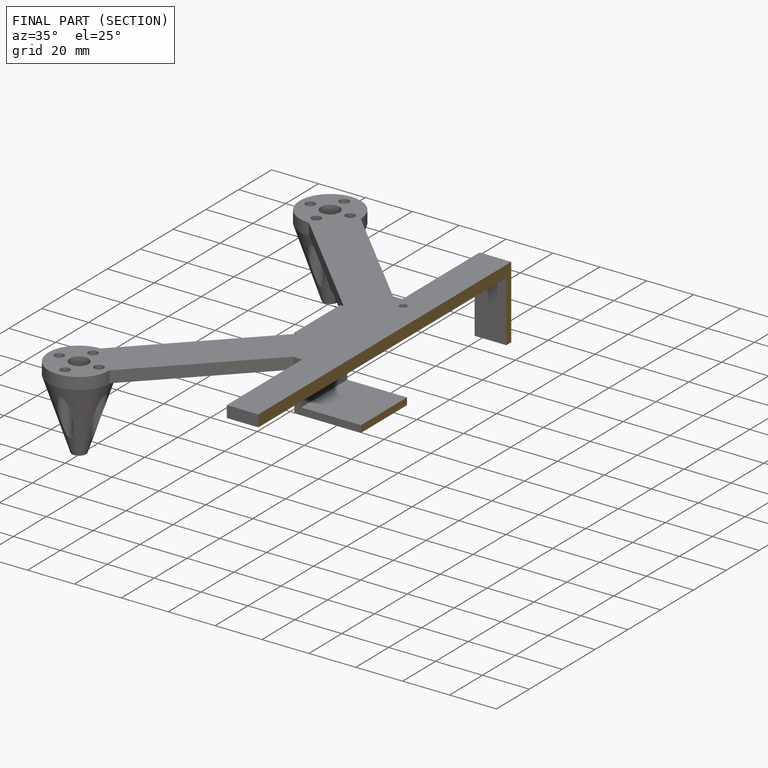
[diagram: finished part — half-section view (interior)]
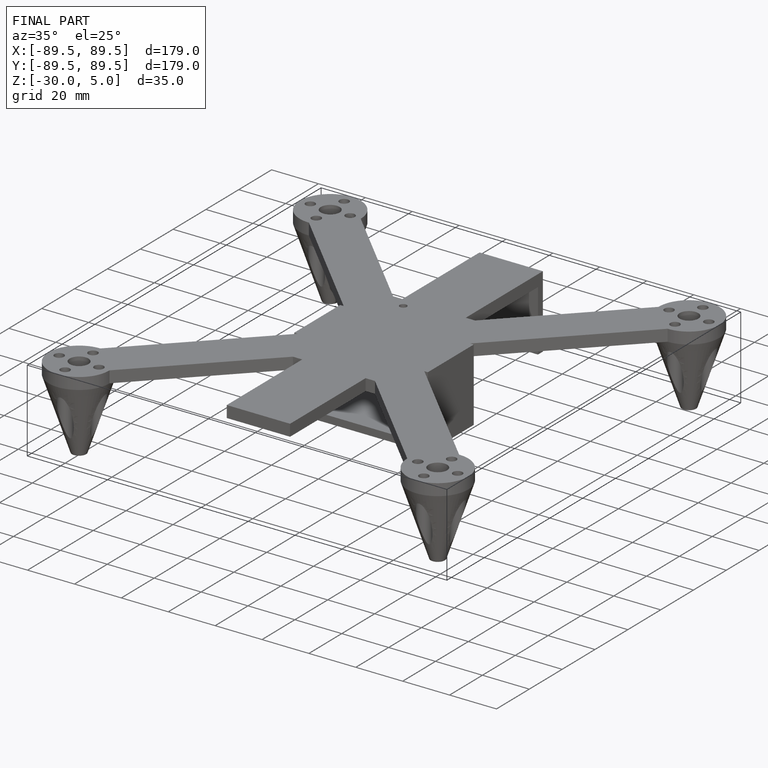
[diagram: finished part — iso view with bounding-box wireframe]
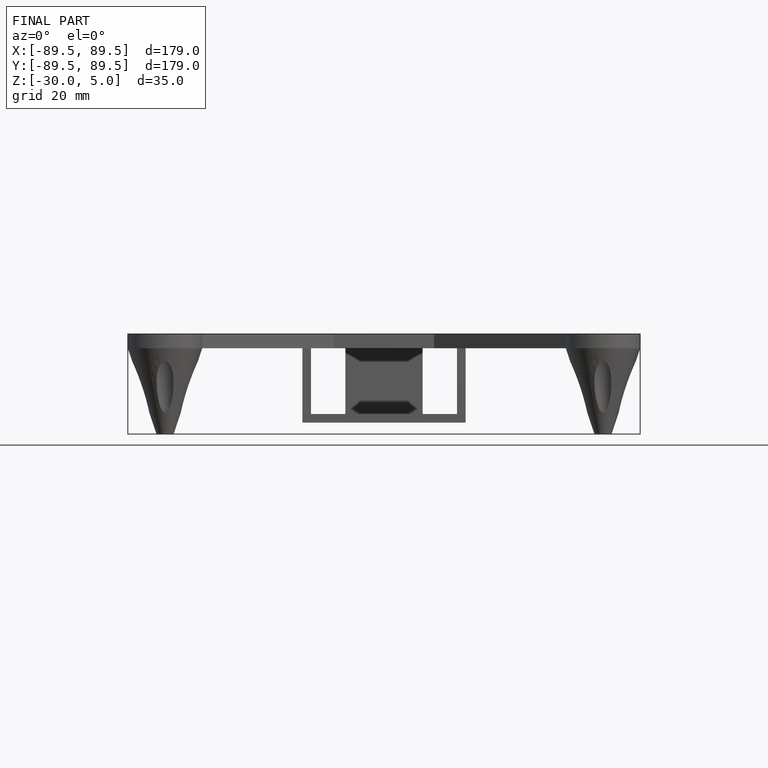
[diagram: finished part — front view with bounding-box wireframe]
